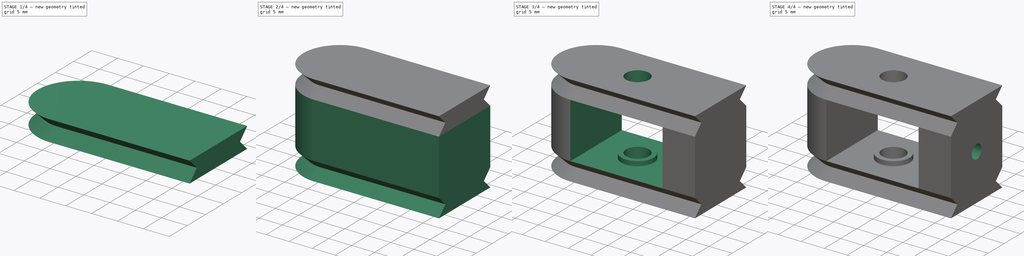
[diagram: build sequence overview — one tinted view per stage of 4, left to right]
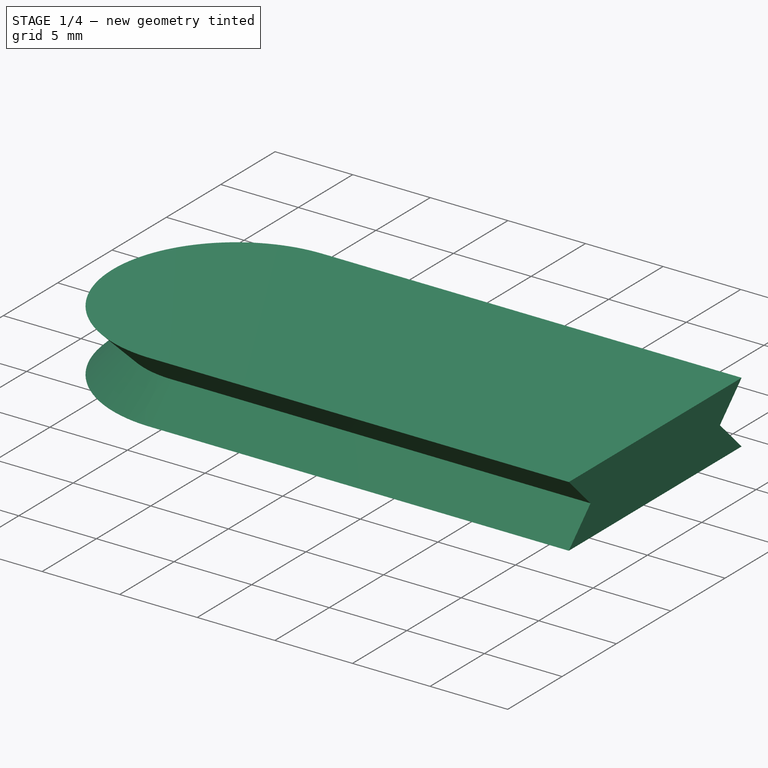
[diagram: stage 1 of 4 — iso view after this stage's code; geometry added in this stage tinted green]
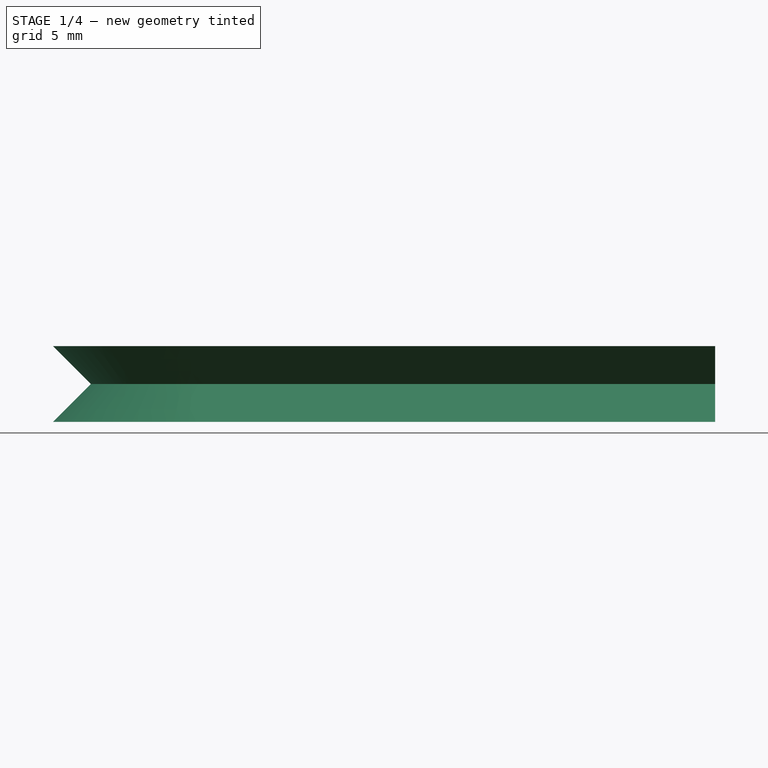
[diagram: stage 1 of 4 — front view after this stage's code; geometry added in this stage tinted green]
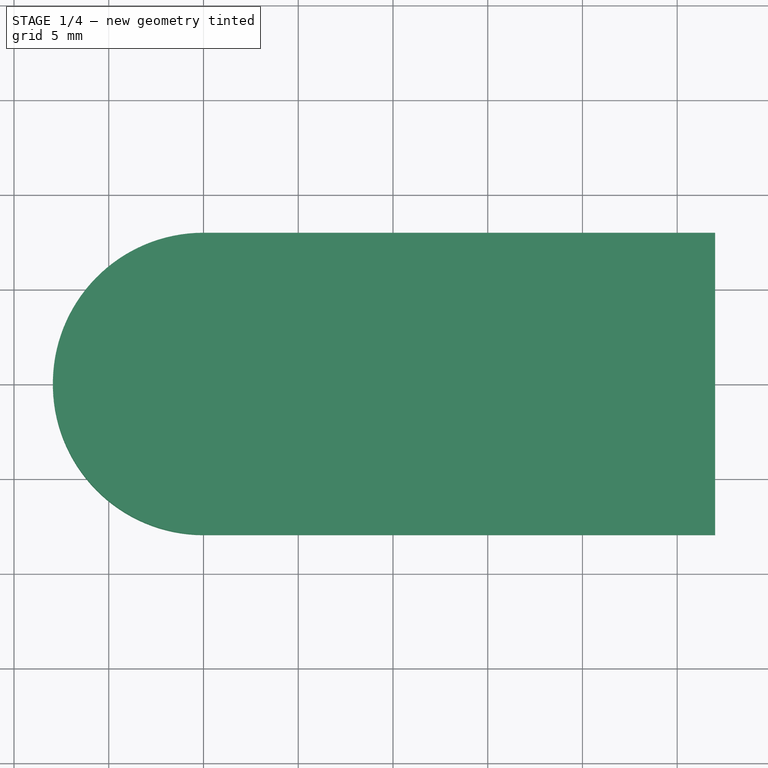
[diagram: stage 1 of 4 — top view after this stage's code; geometry added in this stage tinted green]
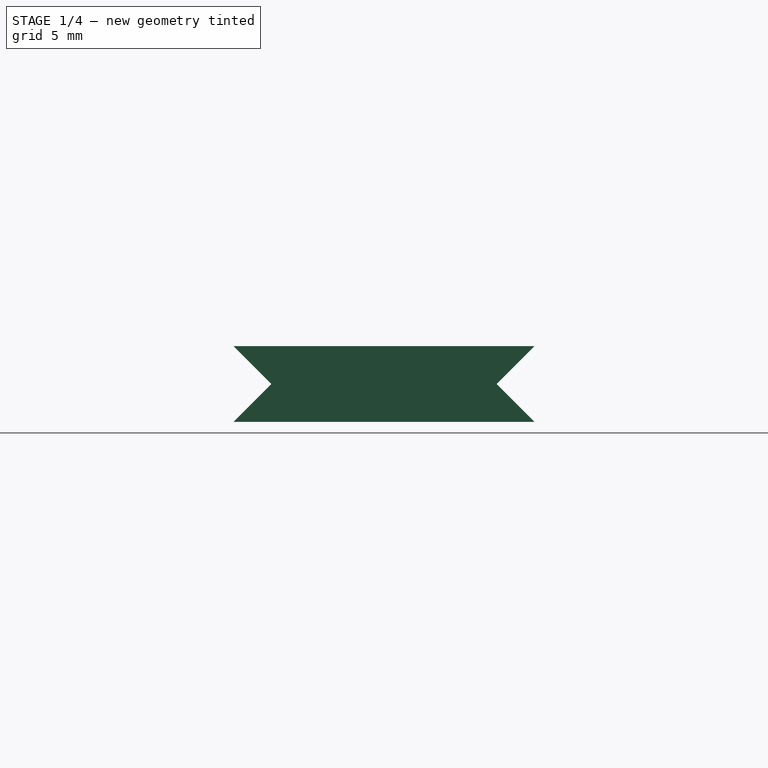
[diagram: stage 1 of 4 — right view after this stage's code; geometry added in this stage tinted green]
FCSTD DOCUMENT  (FreeCAD 0.18R14090 (Git))
Label: XBeltTensionerIdler
License: All rights reserved
LicenseURL: http://en.wikipedia.org/wiki/All_rights_reserved
objects: Sketcher::SketchObject×9, PartDesign::Pocket×5, PartDesign::Plane×3, PartDesign::Body×2, App::Part×2, PartDesign::Pad×1, PartDesign::AdditiveLoft×1, Part::Box×1, Part::Cylinder×1, Part::Mirroring×1, Part::MultiFuse×1, PartDesign::FeatureBase×1, Part::FeaturePython×1
note: 34 computed .brp shape members not serialized (recipe doc carries the construction recipe); baked Part::Feature solids carry a one-line shape summary decoded from their .brp

FEATURE [Sketcher::SketchObject] Sketch  label="IB_BaseSketch"
  MapMode = 5
  Placement = pos=(0,0,0) rot=(0.57735,0.57735,0.57735;2.0944rad)
  Support = -> [YZ_Plane001]
  sketch-geometry (8):
    g0: LineSegment StartX=0 StartY=2 StartZ=0 EndX=-7.95 EndY=2 EndZ=0
    g1: LineSegment StartX=0 StartY=2 StartZ=0 EndX=7.95 EndY=2 EndZ=0
    g2: LineSegment StartX=7.95 StartY=2 StartZ=0 EndX=5.95 EndY=0 EndZ=0
    g3: LineSegment StartX=5.95 StartY=0 StartZ=0 EndX=7.95 EndY=-2 EndZ=0
    g4: LineSegment StartX=7.95 StartY=-2 StartZ=0 EndX=0 EndY=-2 EndZ=0
    g5: LineSegment StartX=0 StartY=-2 StartZ=0 EndX=-7.95 EndY=-2 EndZ=0
    g6: LineSegment StartX=-7.95 StartY=-2 StartZ=0 EndX=-5.95 EndY=0 EndZ=0
    g7: LineSegment StartX=-5.95 StartY=0 StartZ=0 EndX=-7.95 EndY=2 EndZ=0
  constraints (20):
    c: PointOnObject(g0,g-2)
    c: Horizontal(g0)
    c: Coincident(g1,g0)
    c: Horizontal(g1)
    c: Coincident(g2,g1)
    c: PointOnObject(g2,g-1)
    c: Coincident(g3,g2)
    c: Coincident(g4,g3)
    c: Coincident(g6,g5)
    c: Coincident(g7,g6)
    c: Coincident(g7,g0)
    c: Coincident(g4,g5)
    c: Symmetric(g4,g0,g-1)
    c: Symmetric(g1,g3,g-1)
    c: Symmetric(g0,g5,g-1)
    c: Symmetric(g2,g6,g-2)
    c: Distance(g2,g6) = 11.9
    c: Distance(g1,g0) = 15.9
    c: Distance(g0,g5) = 4
    c: Equal(g0,g1)
FEATURE [PartDesign::Pad] Pad  label="IB_BasePad"
  Length = 27
  Length2 = 100
  Placement = pos=(0,0,0) rot=(0.57735,0.57735,0.57735;2.0944rad)
  Profile = -> Sketch
  Type = 0
FEATURE [Sketcher::SketchObject] Sketch001  label="IB_ClipCenterSketch"
  ExternalGeometry = -> [Sketch]
  MapMode = 5
  Support = -> [XY_Plane001]
  sketch-geometry (2):
    g0: ArcOfCircle CenterX=0 CenterY=0 CenterZ=0 NormalX=0 NormalY=0 NormalZ=1 AngleXU=0 Radius=5.95 StartAngle=1.5708 EndAngle=4.71239
    g1: LineSegment StartX=1e-12 StartY=5.95 StartZ=0 EndX=0 EndY=-5.95 EndZ=0
  constraints (5):
    c: Coincident(g0,g-1)
    c: Coincident(g0,g-3)
    c: PointOnObject(g0,g-2)
    c: Coincident(g1,g0)
    c: Coincident(g1,g0)
FEATURE [PartDesign::Plane] DatumPlane  label="IB_TopPlane"
  AttachmentOffset = pos=(0,0,2) rot=(0,0,1;0rad)
  MapMode = 5
  Placement = pos=(0,0,2) rot=(0,0,1;0rad)
  Support = -> [XY_Plane001]
FEATURE [PartDesign::Plane] DatumPlane001  label="IB_BottomPlane"
  AttachmentOffset = pos=(0,0,-2) rot=(0,0,1;0rad)
  MapMode = 5
  Placement = pos=(0,0,-2) rot=(0,0,1;0rad)
  Support = -> [XY_Plane001]
FEATURE [Sketcher::SketchObject] Sketch002  label="IB_ClipTopSketch"
  ExternalGeometry = -> [Sketch]
  MapMode = 5
  Placement = pos=(0,0,2) rot=(0,0,1;0rad)
  Support = -> [DatumPlane]
  sketch-geometry (2):
    g0: ArcOfCircle CenterX=0 CenterY=0 CenterZ=0 NormalX=0 NormalY=0 NormalZ=1 AngleXU=0 Radius=7.95 StartAngle=1.5708 EndAngle=4.71239
    g1: LineSegment StartX=1e-12 StartY=7.95 StartZ=0 EndX=0 EndY=-7.95 EndZ=0
  constraints (5):
    c: Coincident(g0,g-1)
    c: Coincident(g0,g-3)
    c: PointOnObject(g0,g-2)
    c: Coincident(g1,g0)
    c: Coincident(g1,g0)
FEATURE [Sketcher::SketchObject] Sketch003  label="IB_ClipBottomSketch"
  ExternalGeometry = -> [Sketch]
  MapMode = 5
  Placement = pos=(0,0,-2) rot=(0,0,1;0rad)
  Support = -> [DatumPlane001]
  sketch-geometry (2):
    g0: ArcOfCircle CenterX=0 CenterY=0 CenterZ=0 NormalX=0 NormalY=0 NormalZ=1 AngleXU=0 Radius=7.95 StartAngle=1.5708 EndAngle=4.71239
    g1: LineSegment StartX=1e-12 StartY=7.95 StartZ=0 EndX=0 EndY=-7.95 EndZ=0
  constraints (5):
    c: Coincident(g0,g-3)
    c: PointOnObject(g0,g-2)
    c: Coincident(g0,g-1)
    c: Coincident(g1,g0)
    c: Coincident(g1,g0)
FEATURE [PartDesign::AdditiveLoft] AdditiveLoft  label="IB_ClipLoft"
  BaseFeature = -> Pad
  Closed = false
  Placement = pos=(0,0,0) rot=(0.57735,0.57735,0.57735;2.0944rad)
  Profile = -> Sketch002
  Ruled = true
  Sections = -> [Sketch001,Sketch003]
FEATURE [Part::Mirroring] Part__Mirroring  label="IdlerBody_Mirror"
  Base = (0,0,0)
  Normal = (0,0,1)
  Source = -> Body
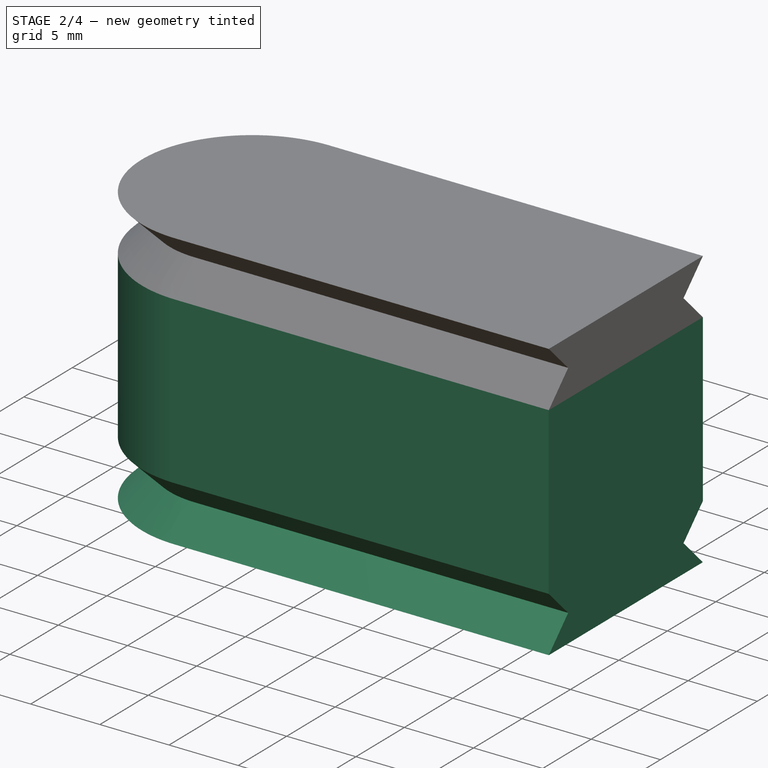
[diagram: stage 2 of 4 — iso view after this stage's code; geometry added in this stage tinted green]
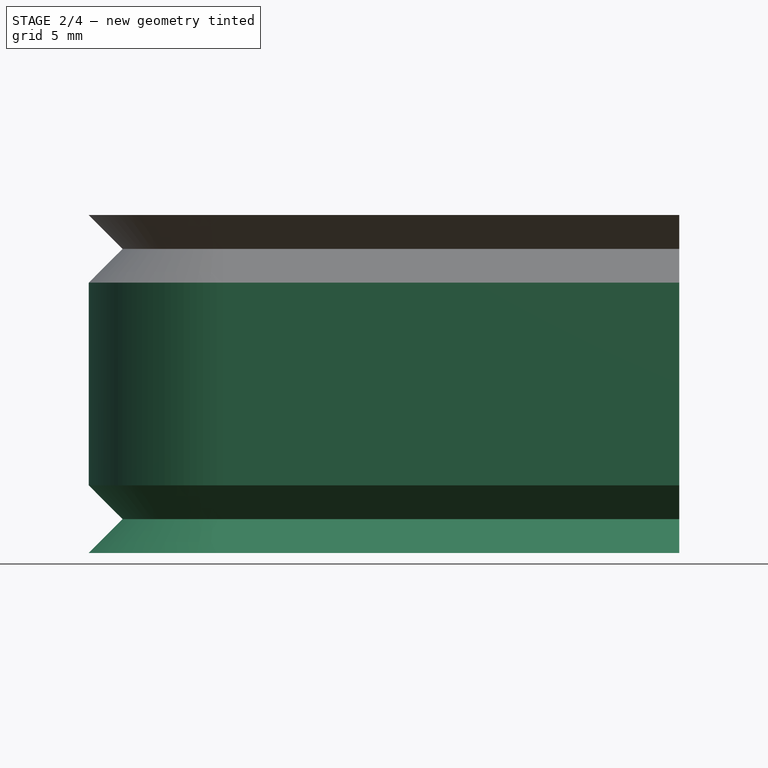
[diagram: stage 2 of 4 — front view after this stage's code; geometry added in this stage tinted green]
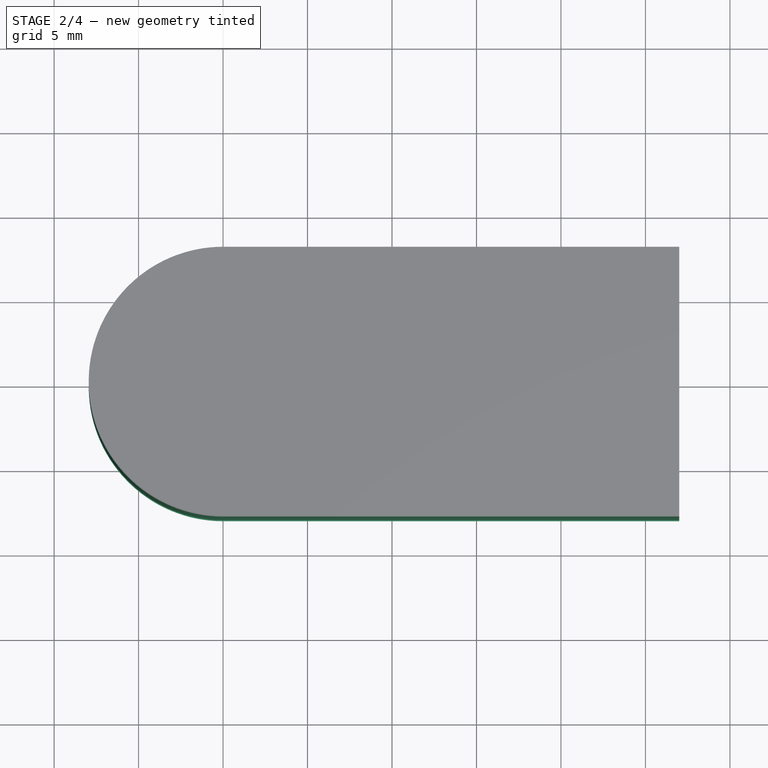
[diagram: stage 2 of 4 — top view after this stage's code; geometry added in this stage tinted green]
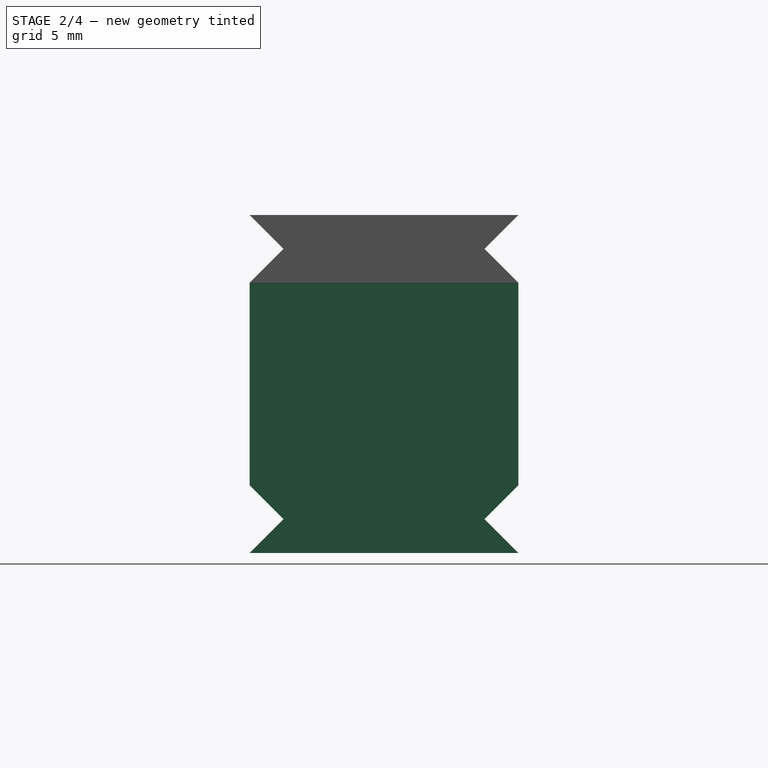
[diagram: stage 2 of 4 — right view after this stage's code; geometry added in this stage tinted green]
FEATURE [PartDesign::Body] Body  label="IdlerBody"
  Group = -> [Sketch,Pad,Sketch001,DatumPlane,DatumPlane001,Sketch002,Sketch003,AdditiveLoft]
  Origin = -> Origin001
  Placement = pos=(0,0,-8) rot=(0,0,1;0rad)
  Tip = -> AdditiveLoft
FEATURE [Part::Box] Box  label="StructuralCube"
  AttacherType = Attacher::AttachEngine3D
  Height = 12
  Length = 27
  Placement = pos=(0,-7.95,-6) rot=(0,0,1;0rad)
  Width = 15.9
FEATURE [Part::Cylinder] Cylinder  label="StructuralCilinder"
  Angle = 360
  AttacherType = Attacher::AttachEngine3D
  Height = 12
  Placement = pos=(0,0,-6) rot=(0,0,1;0rad)
  Radius = 7.95
FEATURE [App::Part] Part  label="XTensioerIdlerPartBase"
  Group = -> [Body,Box,Cylinder,Part__Mirroring]
  License = CC BY 3.0
  LicenseURL = http://creativecommons.org/licenses/by/3.0/
  Origin = -> Origin
FEATURE [Part::MultiFuse] Fusion  label="BaseFusion"
  Shapes = -> [Box,Cylinder,Part__Mirroring,Body]
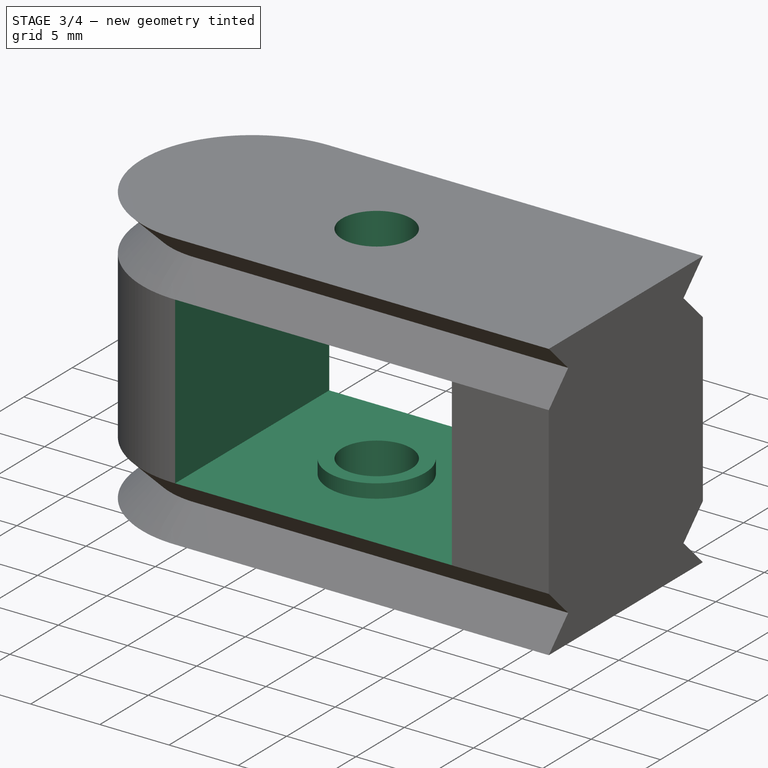
[diagram: stage 3 of 4 — iso view after this stage's code; geometry added in this stage tinted green]
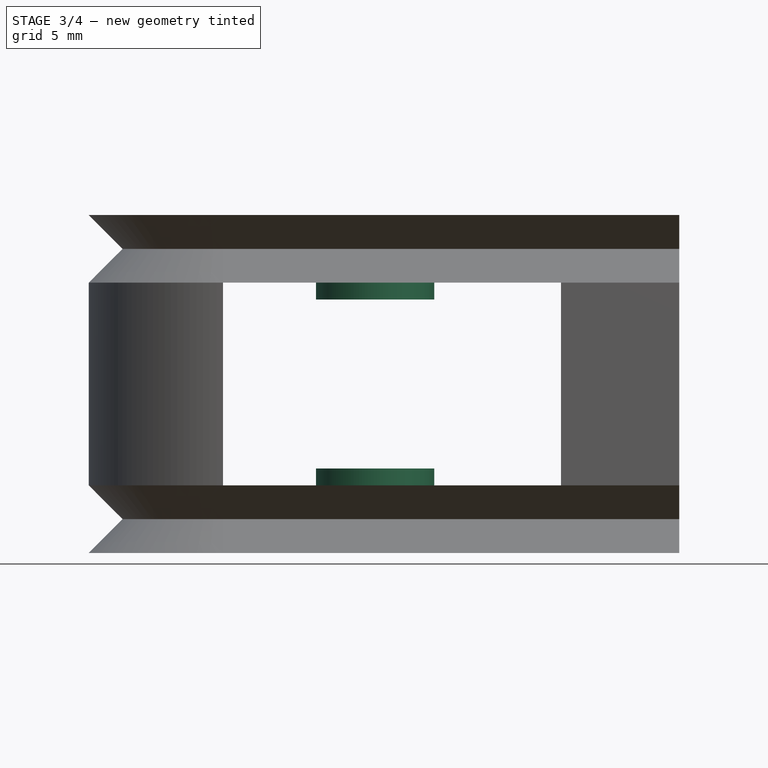
[diagram: stage 3 of 4 — front view after this stage's code; geometry added in this stage tinted green]
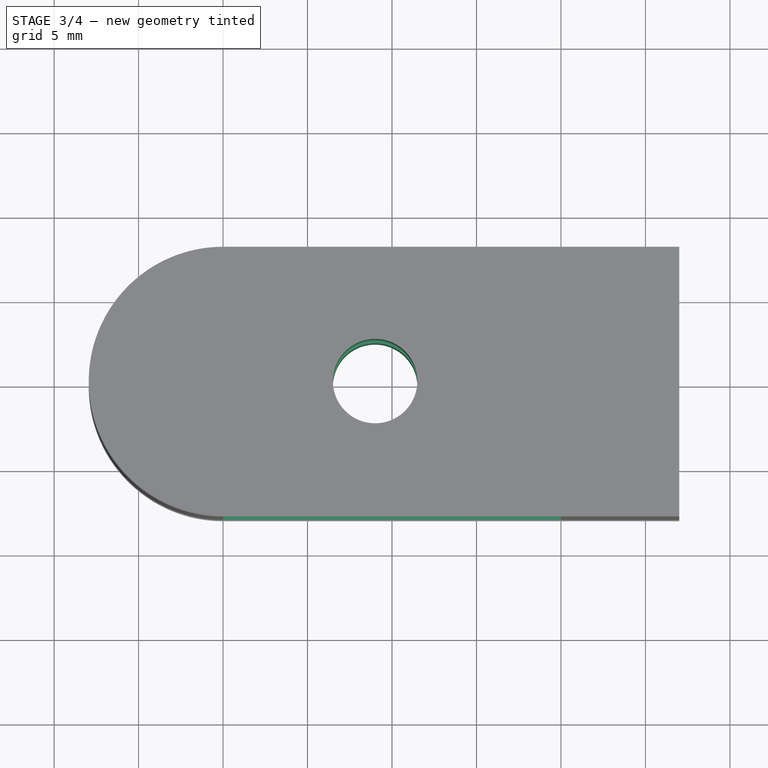
[diagram: stage 3 of 4 — top view after this stage's code; geometry added in this stage tinted green]
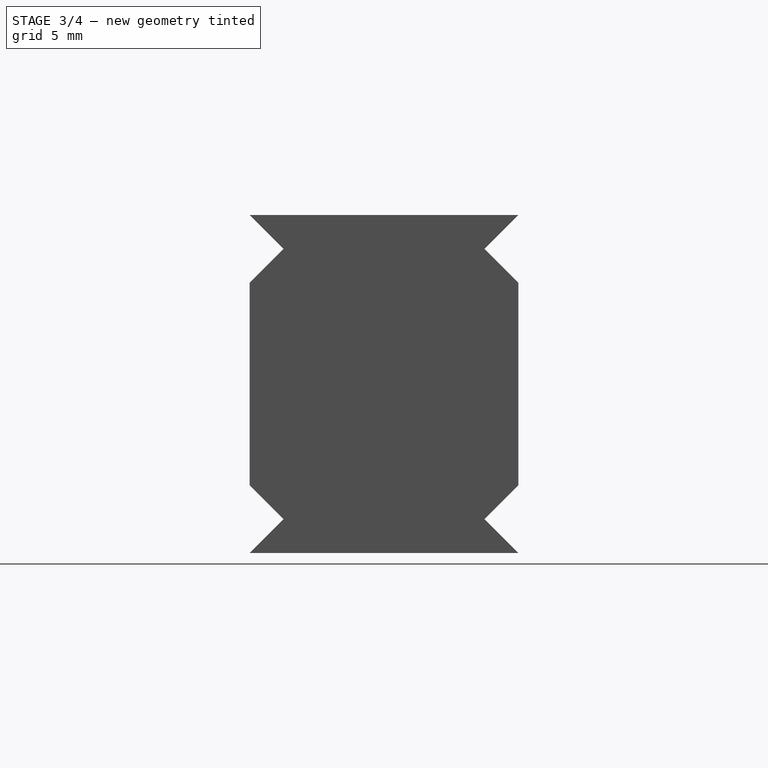
[diagram: stage 3 of 4 — right view after this stage's code; geometry added in this stage tinted green]
FEATURE [PartDesign::FeatureBase] BaseFeature
  BaseFeature = -> Fusion
FEATURE [Sketcher::SketchObject] Sketch004  label="BaseCutSketch"
  MapMode = 5
  Support = -> [XY_Plane003]
  sketch-geometry (5):
    g0: LineSegment StartX=0 StartY=10 StartZ=0 EndX=20 EndY=10 EndZ=0
    g1: LineSegment StartX=20 StartY=10 StartZ=0 EndX=20 EndY=-10 EndZ=0
    g2: LineSegment StartX=20 StartY=-10 StartZ=0 EndX=0 EndY=-10 EndZ=0
    g3: LineSegment StartX=0 StartY=-10 StartZ=0 EndX=0 EndY=10 EndZ=0
    g4: Circle CenterX=9 CenterY=0 CenterZ=0 NormalX=0 NormalY=0 NormalZ=1 AngleXU=0 Radius=3.5
  constraints (14):
    c: Coincident(g0,g1)
    c: Coincident(g1,g2)
    c: Coincident(g2,g3)
    c: Coincident(g3,g0)
    c: Horizontal(g0)
    c: Horizontal(g2)
    c: Vertical(g1)
    c: PointOnObject(g0,g-2)
    c: Symmetric(g0,g2,g-1)
    c: Distance(g0,g2) = 20
    c: Distance(g0) = 20
    c: PointOnObject(g4,g-1)
    c: Distance(g4,g3) = 9
    c: Radius(g4) = 3.5
FEATURE [PartDesign::Pocket] Pocket  label="BaseCutPocket"
  BaseFeature = -> BaseFeature
  Length = 12
  Length2 = 100
  Midplane = true
  Profile = -> Sketch004
  Type = 0
FEATURE [Sketcher::SketchObject] Sketch005  label="ClipCut1Sketch"
  ExternalGeometry = -> [Sketch004]
  MapMode = 5
  Support = -> [XY_Plane003]
  sketch-geometry (1):
    g0: Circle CenterX=9 CenterY=0 CenterZ=0 NormalX=0 NormalY=0 NormalZ=1 AngleXU=0 Radius=3.5
  constraints (2):
    c: Coincident(g0,g-3)
    c: Equal(g0,g-3)
FEATURE [PartDesign::Pocket] Pocket001  label="ClipCut1Pocket"
  BaseFeature = -> Pocket
  Length = 10
  Length2 = 100
  Midplane = true
  Profile = -> Sketch005
  Type = 0
FEATURE [Sketcher::SketchObject] Sketch006  label="ClipCut2Sketch"
  ExternalGeometry = -> [Sketch004]
  MapMode = 5
  Support = -> [XY_Plane003]
  sketch-geometry (1):
    g0: Circle CenterX=9 CenterY=0 CenterZ=0 NormalX=0 NormalY=0 NormalZ=1 AngleXU=0 Radius=2.5
  constraints (2):
    c: Coincident(g0,g-3)
    c: Radius(g0) = 2.5
FEATURE [PartDesign::Pocket] Pocket002  label="ClipCut2Pocket"
  BaseFeature = -> Pocket001
  Length = 5
  Length2 = 100
  Midplane = true
  Profile = -> Sketch006
  Type = 1
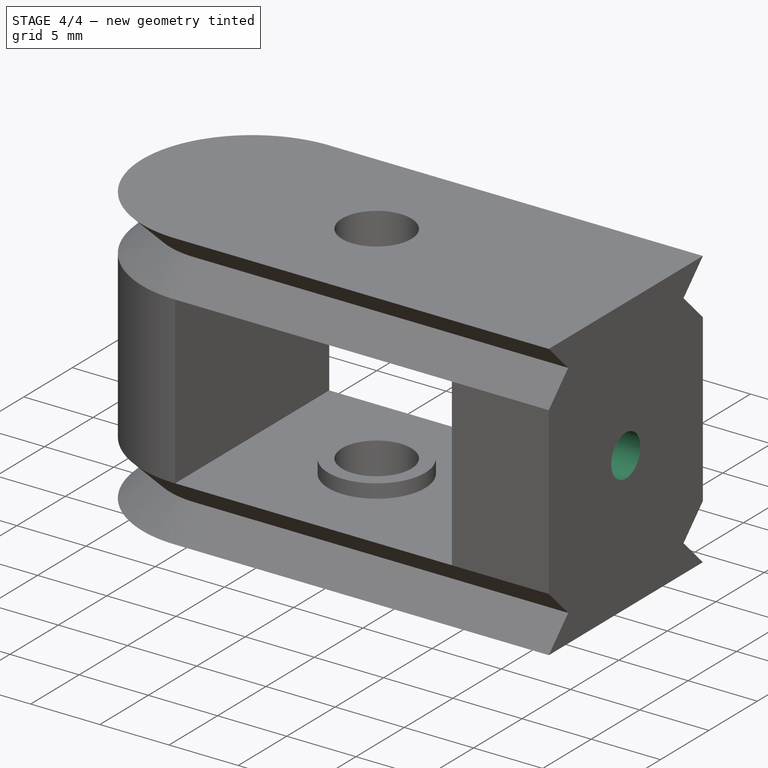
[diagram: stage 4 of 4 — iso view after this stage's code; geometry added in this stage tinted green]
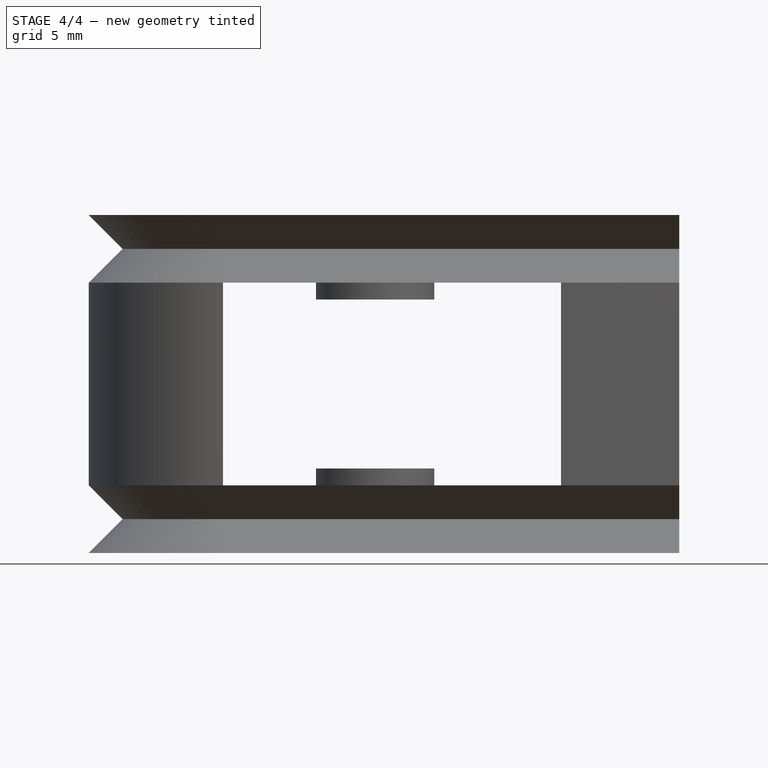
[diagram: stage 4 of 4 — front view after this stage's code; geometry added in this stage tinted green]
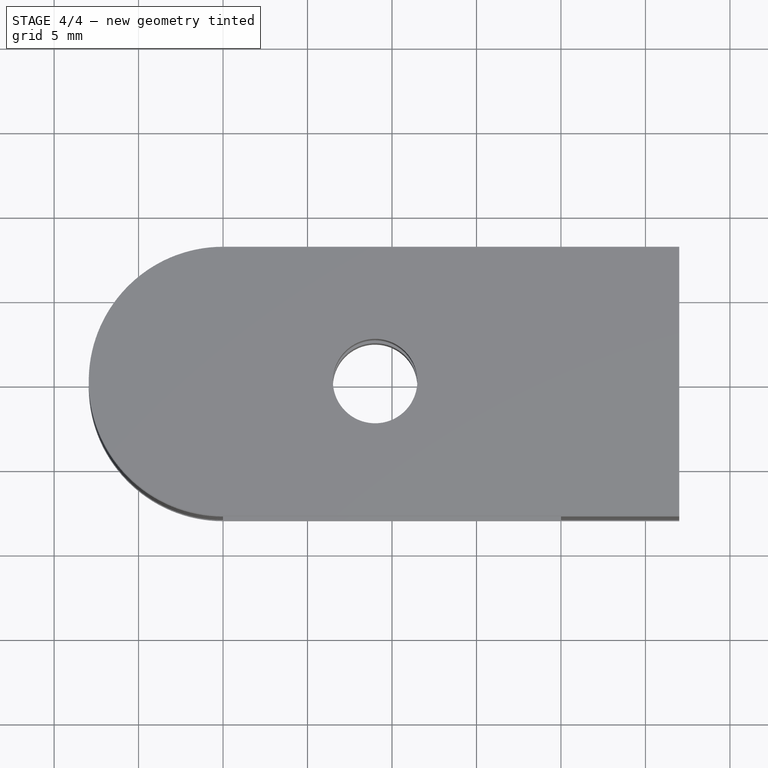
[diagram: stage 4 of 4 — top view after this stage's code; geometry added in this stage tinted green]
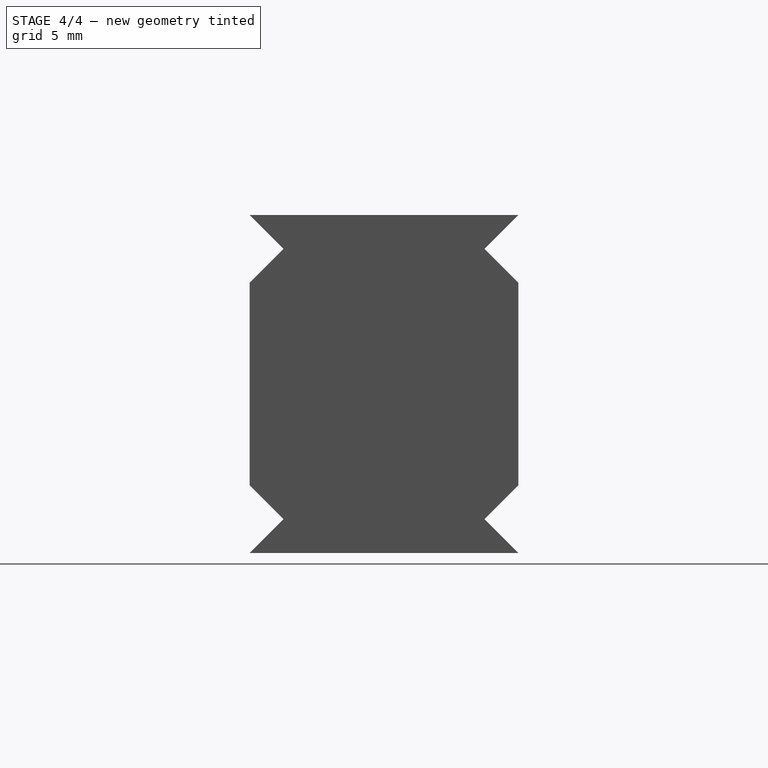
[diagram: stage 4 of 4 — right view after this stage's code; geometry added in this stage tinted green]
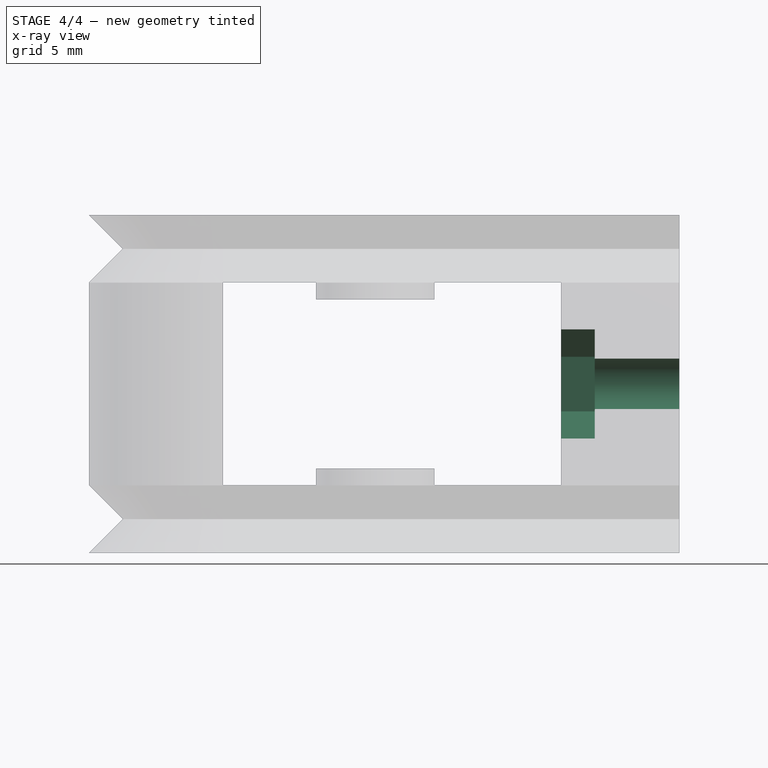
[diagram: stage 4 of 4 — x-ray composite at the front view; earlier geometry ghosted, this stage's added geometry solid]
FEATURE [PartDesign::Plane] DatumPlane002  label="TuneScrewNutPlane"
  AttachmentOffset = pos=(0,0,20) rot=(0,0,1;0rad)
  MapMode = 5
  Placement = pos=(20,-2e-12,2e-12) rot=(0.57735,0.57735,0.57735;2.0944rad)
  Support = -> [YZ_Plane003]
FEATURE [Sketcher::SketchObject] Sketch007  label="TuneScrewNutSketch"
  MapMode = 5
  Placement = pos=(20,-2e-12,2e-12) rot=(0.57735,0.57735,0.57735;2.0944rad)
  Support = -> [DatumPlane002]
  sketch-geometry (7):
    g0: LineSegment StartX=2.8 StartY=-1.61658 StartZ=0 EndX=2.8 EndY=1.61658 EndZ=0
    g1: LineSegment StartX=2.8 StartY=1.61658 StartZ=0 EndX=1.9e-11 EndY=3.23316 EndZ=0
    g2: LineSegment StartX=1.9e-11 StartY=3.23316 StartZ=0 EndX=-2.8 EndY=1.61658 EndZ=0
    g3: LineSegment StartX=-2.8 StartY=1.61658 StartZ=0 EndX=-2.8 EndY=-1.61658 EndZ=0
    g4: LineSegment StartX=-2.8 StartY=-1.61658 StartZ=0 EndX=2.1e-11 EndY=-3.23316 EndZ=0
    g5: LineSegment StartX=2.1e-11 StartY=-3.23316 StartZ=0 EndX=2.8 EndY=-1.61658 EndZ=0
    g6: Circle [constr] CenterX=0 CenterY=0 CenterZ=0 NormalX=0 NormalY=0 NormalZ=1 AngleXU=0 Radius=3.23316
  constraints (16):
    c: Coincident(g0,g1)
    c: Coincident(g1,g2)
    c: Coincident(g2,g3)
    c: Coincident(g3,g4)
    c: Coincident(g4,g5)
    c: Coincident(g5,g0)
    c: Equal(g0, g1-g5) x5
    c: PointOnObject(g0,g6)
    c: PointOnObject(g1,g6)
    c: PointOnObject(g2,g6)
    c: PointOnObject(g3,g6)
    c: PointOnObject(g4,g6)
    c: PointOnObject(g5,g6)
    c: Coincident(g6,g-1)
    c: Vertical(g0)
    c: Distance(g2,g0) = 5.6
FEATURE [PartDesign::Pocket] Pocket003  label="TuneScrewNutPocket"
  BaseFeature = -> Pocket002
  Length = 2
  Length2 = 100
  Profile = -> Sketch007
  Reversed = true
  Type = 0
FEATURE [Sketcher::SketchObject] Sketch008  label="TuneScrewSketch"
  MapMode = 5
  Placement = pos=(20,-2e-12,2e-12) rot=(0.57735,0.57735,0.57735;2.0944rad)
  Support = -> [DatumPlane002]
  sketch-geometry (1):
    g0: Circle CenterX=0 CenterY=0 CenterZ=0 NormalX=0 NormalY=0 NormalZ=1 AngleXU=0 Radius=1.5
  constraints (2):
    c: Coincident(g0,g-1)
    c: Radius(g0) = 1.5
FEATURE [PartDesign::Pocket] Pocket004  label="TuneScrewPocket"
  BaseFeature = -> Pocket003
  Length = 5
  Length2 = 100
  Profile = -> Sketch008
  Reversed = true
  Type = 1
FEATURE [PartDesign::Body] Body001  label="FinalCutsBody"
  BaseFeature = -> Fusion
  Group = -> [BaseFeature,Sketch004,Pocket,Sketch005,Pocket001,Sketch006,Pocket002,DatumPlane002,Sketch007,Pocket003,Sketch008,Pocket004]
  Origin = -> Origin003
  Tip = -> Pocket004
FEATURE [App::Part] Part001  label="XTensioerIdlerPart"
  Group = -> [Part,Body001]
  License = CC BY 3.0
  LicenseURL = http://creativecommons.org/licenses/by/3.0/
  Origin = -> Origin002
FEATURE [Part::FeaturePython] refine  label="FinalCutsBody_Refined"  # WARN: FeaturePython — macro-defined, semantics opaque (R4)
  Base = -> Body001
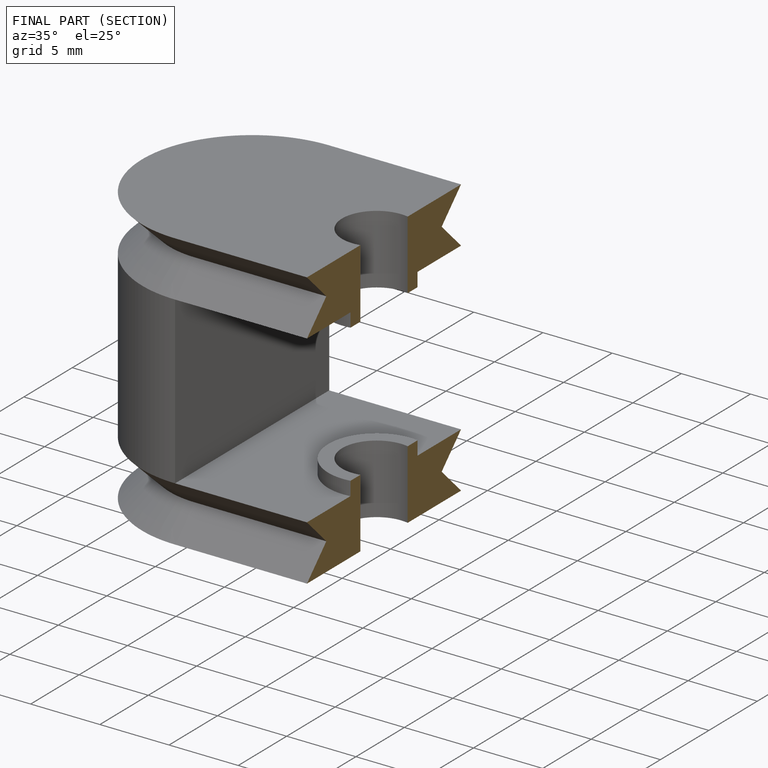
[diagram: finished part — half-section view (interior)]
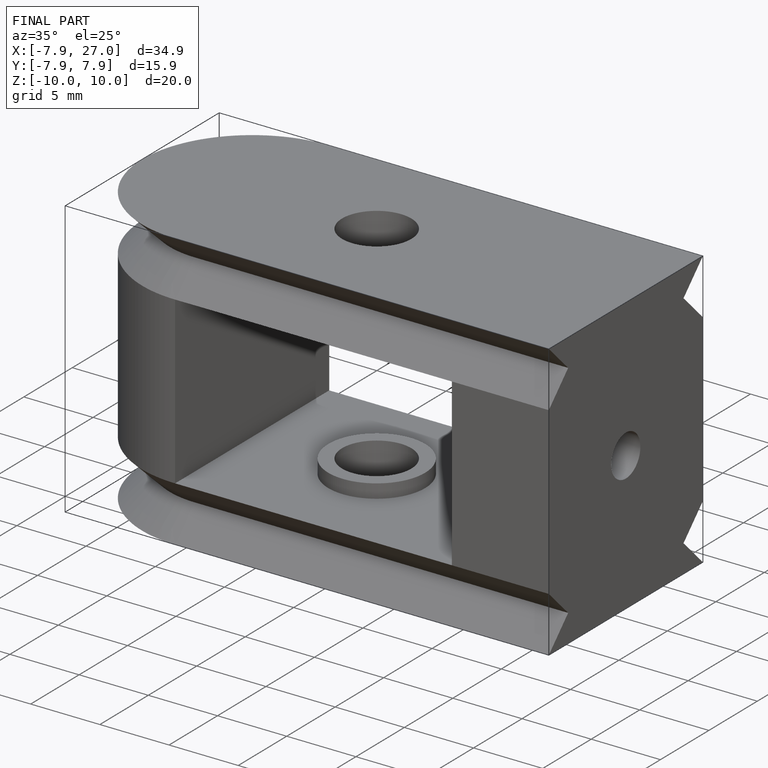
[diagram: finished part — iso view with bounding-box wireframe]
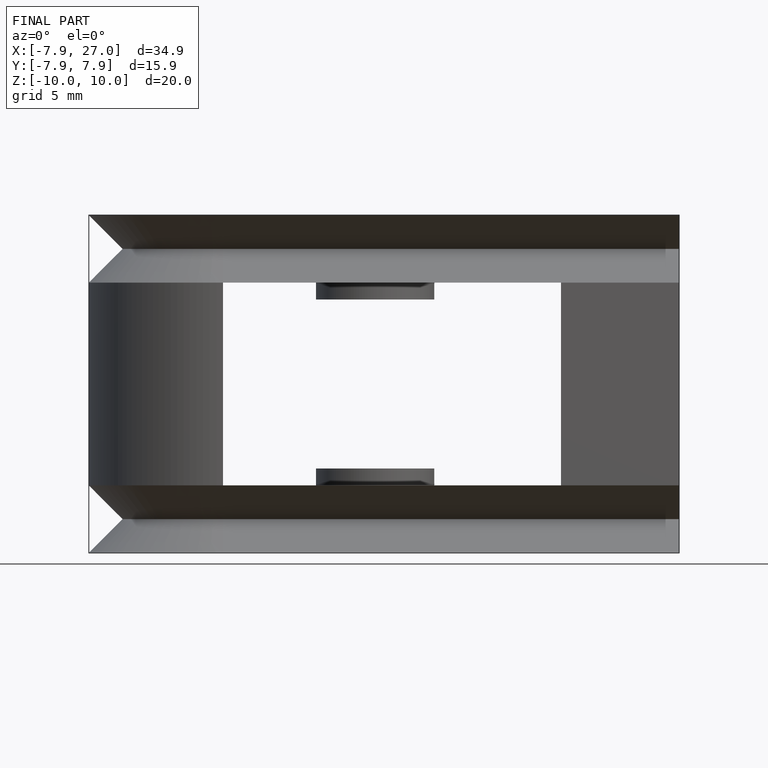
[diagram: finished part — front view with bounding-box wireframe]
